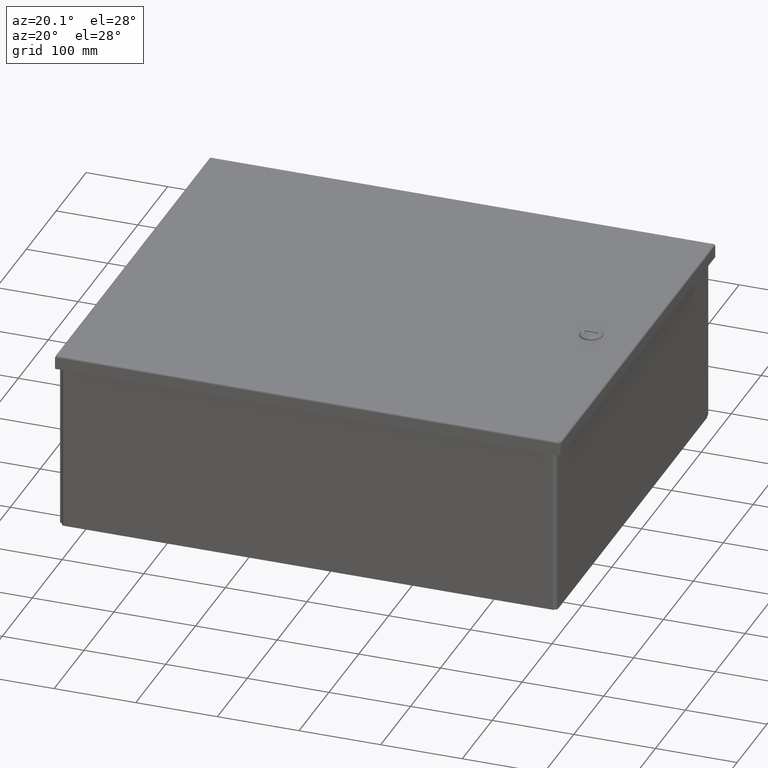
[diagram: clean part render]
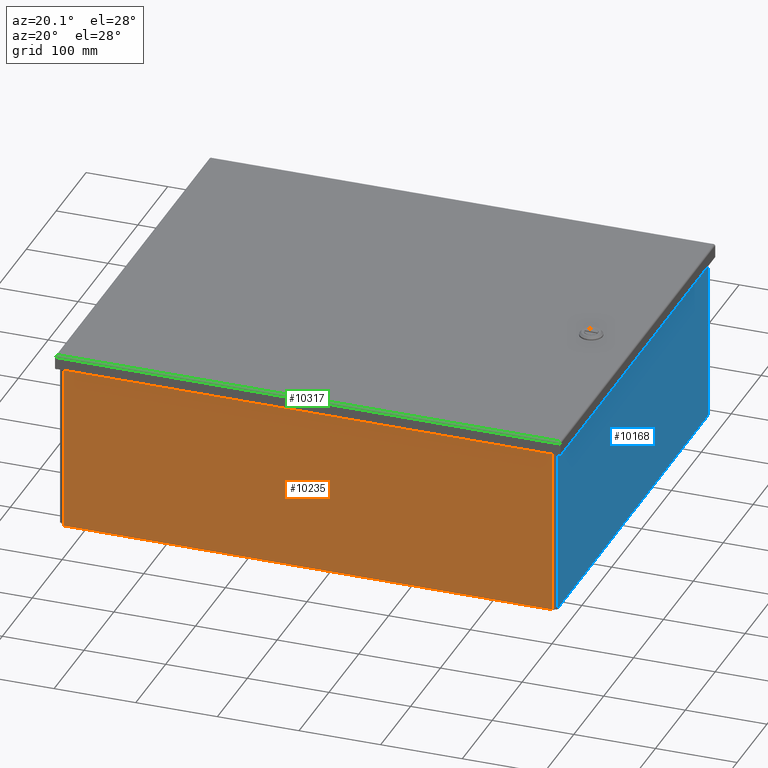
[diagram: same view with three faces highlighted in distinct colors, each labeled with its STEP entity id]
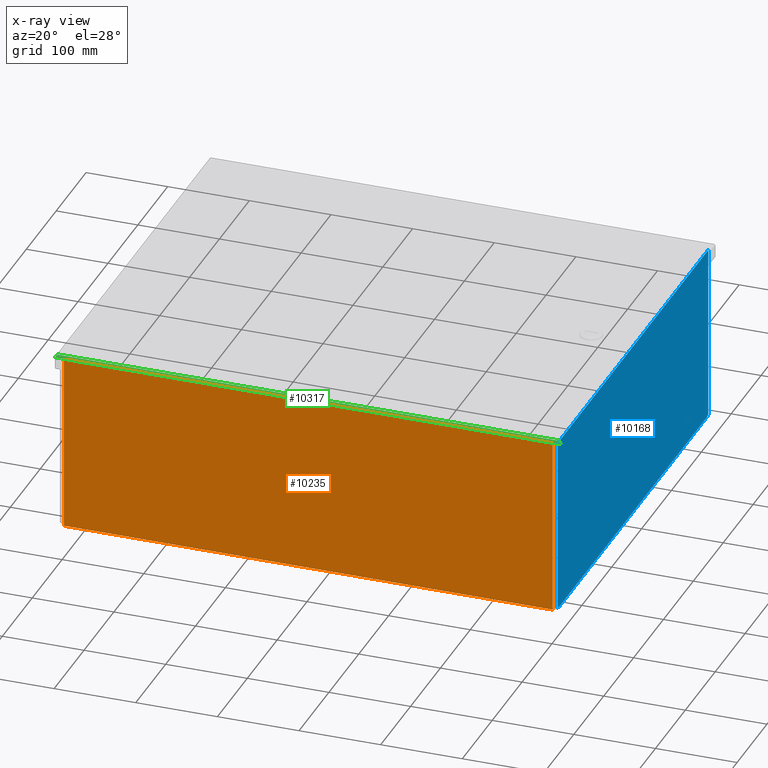
[diagram: x-ray of the same camera — body ghosted, the three highlighted faces saturated]
A machine part, auxiliary view with three faces highlighted in distinct colors.
The next image is the same camera in x-ray (body ghosted, the three faces saturated) — at least one of them is partly hidden behind the body in this view.
Their STEP definitions:

[orange] entity #10235 — the highlighted planar face has unit normal (-0, 1, -0).
#482=LINE('',#15215,#1411);
#487=LINE('',#15233,#1416);
#493=LINE('',#15245,#1422);
#494=LINE('',#15247,#1423);
#495=LINE('',#15249,#1424);
#496=LINE('',#15251,#1425);
#497=LINE('',#15253,#1426);
#498=LINE('',#15255,#1427);
#499=LINE('',#15256,#1428);
#500=LINE('',#15258,#1429);
#501=LINE('',#15259,#1430);
#502=LINE('',#15260,#1431);
#1411=VECTOR('',#12231,8.50825);
#1416=VECTOR('',#12248,0.0310499999999996);
#1422=VECTOR('',#12256,0.0310500000000003);
#1423=VECTOR('',#12259,0.170250000000002);
#1424=VECTOR('',#12260,0.00020000000000138);
#1425=VECTOR('',#12261,0.000199999999999981);
#1426=VECTOR('',#12262,23.2381);
#1427=VECTOR('',#12263,0.000199999999999981);
#1428=VECTOR('',#12264,0.000199999999999981);
#1429=VECTOR('',#12265,0.170250000000001);
#1430=VECTOR('',#12266,8.50825);
#1431=VECTOR('',#12267,23.579);
#2250=PLANE('',#10906);
#2726=FACE_OUTER_BOUND('',#3350,.T.);
#3350=EDGE_LOOP('',(#7064,#7065,#7066,#7067,#7068,#7069,#7070,#7071,#7072,
#7073,#7074,#7075));
#4460=VERTEX_POINT('',#15207);
#4462=VERTEX_POINT('',#15213);
#4464=VERTEX_POINT('',#15219);
#4468=VERTEX_POINT('',#15230);
#4469=VERTEX_POINT('',#15232);
#4472=VERTEX_POINT('',#15239);
#4474=VERTEX_POINT('',#15243);
#4475=VERTEX_POINT('',#15248);
#4476=VERTEX_POINT('',#15250);
#4477=VERTEX_POINT('',#15252);
#4478=VERTEX_POINT('',#15254);
#4479=VERTEX_POINT('',#15257);
#5435=EDGE_CURVE('',#4460,#4462,#482,.T.);
#5443=EDGE_CURVE('',#4469,#4468,#487,.T.);
#5449=EDGE_CURVE('',#4472,#4474,#493,.T.);
#5450=EDGE_CURVE('',#4462,#4469,#494,.T.);
#5451=EDGE_CURVE('',#4468,#4475,#495,.T.);
#5452=EDGE_CURVE('',#4475,#4476,#496,.T.);
#5453=EDGE_CURVE('',#4476,#4477,#497,.T.);
#5454=EDGE_CURVE('',#4477,#4478,#498,.T.);
#5455=EDGE_CURVE('',#4478,#4472,#499,.T.);
#5456=EDGE_CURVE('',#4474,#4479,#500,.T.);
#5457=EDGE_CURVE('',#4479,#4464,#501,.T.);
#5458=EDGE_CURVE('',#4464,#4460,#502,.T.);
#7064=ORIENTED_EDGE('',*,*,#5450,.T.);
#7065=ORIENTED_EDGE('',*,*,#5443,.T.);
#7066=ORIENTED_EDGE('',*,*,#5451,.T.);
#7067=ORIENTED_EDGE('',*,*,#5452,.T.);
#7068=ORIENTED_EDGE('',*,*,#5453,.T.);
#7069=ORIENTED_EDGE('',*,*,#5454,.T.);
#7070=ORIENTED_EDGE('',*,*,#5455,.T.);
#7071=ORIENTED_EDGE('',*,*,#5449,.T.);
#7072=ORIENTED_EDGE('',*,*,#5456,.T.);
#7073=ORIENTED_EDGE('',*,*,#5457,.T.);
#7074=ORIENTED_EDGE('',*,*,#5458,.T.);
#7075=ORIENTED_EDGE('',*,*,#5435,.T.);
#10235=ADVANCED_FACE('',(#2726),#2250,.F.);
#10906=AXIS2_PLACEMENT_3D('',#15246,#12257,#12258);
#12231=DIRECTION('',(1.60849400311198E-16,1.,0.));
#12248=DIRECTION('',(0.,1.,0.));
#12256=DIRECTION('',(0.,-1.,0.));
#12257=DIRECTION('center_axis',(0.,0.,1.));
#12258=DIRECTION('ref_axis',(1.,0.,0.));
#12259=DIRECTION('',(1.,0.,0.));
#12260=DIRECTION('',(1.,0.,0.));
#12261=DIRECTION('',(0.,1.,0.));
#12262=DIRECTION('',(1.,2.40760849252926E-16,0.));
#12263=DIRECTION('',(0.,-1.,0.));
#12264=DIRECTION('',(1.,0.,0.));
#12265=DIRECTION('',(1.,0.,0.));
#12266=DIRECTION('',(1.60849400311198E-16,-1.,0.));
#12267=DIRECTION('',(-1.,-1.18014358146819E-16,0.));
#15207=CARTESIAN_POINT('',(-11.7895,-4.301,-1.09273919746571E-17));
#15213=CARTESIAN_POINT('',(-11.7895,4.20725,0.));
#15215=CARTESIAN_POINT('',(-11.7895,-2.1505,0.));
#15219=CARTESIAN_POINT('',(11.7895,-4.301,-3.27821759239712E-17));
#15230=CARTESIAN_POINT('',(-11.61925,4.2383,-2.18547839493141E-17));
#15232=CARTESIAN_POINT('',(-11.61925,4.20725,0.));
#15233=CARTESIAN_POINT('',(-11.61925,2.103625,0.));
#15239=CARTESIAN_POINT('',(11.61925,4.2383,-2.18547839493141E-17));
#15243=CARTESIAN_POINT('',(11.61925,4.20725,0.));
#15245=CARTESIAN_POINT('',(11.61925,2.1505,0.));
#15246=CARTESIAN_POINT('Origin',(-1.3987061727561E-15,-6.99353086378051E-16,
0.));
#15247=CARTESIAN_POINT('',(-5.926,4.20725,0.));
#15248=CARTESIAN_POINT('',(-11.61905,4.2383,-2.18547839493141E-17));
#15249=CARTESIAN_POINT('',(-5.809625,4.2383,0.));
#15250=CARTESIAN_POINT('',(-11.61905,4.2385,-2.18547839493141E-17));
#15251=CARTESIAN_POINT('',(-11.61905,2.11915,0.));
#15252=CARTESIAN_POINT('',(11.61905,4.2385,-2.18547839493141E-17));
#15253=CARTESIAN_POINT('',(-5.809525,4.2385,0.));
#15254=CARTESIAN_POINT('',(11.61905,4.2383,-2.18547839493141E-17));
#15255=CARTESIAN_POINT('',(11.61905,2.1505,0.));
#15256=CARTESIAN_POINT('',(5.809525,4.2383,0.));
#15257=CARTESIAN_POINT('',(11.7895,4.20725,0.));
#15258=CARTESIAN_POINT('',(5.809625,4.20725,0.));
#15259=CARTESIAN_POINT('',(11.7895,2.1505,0.));
#15260=CARTESIAN_POINT('',(11.852,-4.301,0.));

[blue] entity #10168 — the highlighted planar face has unit normal (-1, -0, 0).
#329=LINE('',#14841,#1258);
#331=LINE('',#14846,#1260);
#357=LINE('',#14901,#1286);
#362=LINE('',#14910,#1291);
#380=LINE('',#14944,#1309);
#381=LINE('',#14946,#1310);
#382=LINE('',#14947,#1311);
#383=LINE('',#14948,#1312);
#1258=VECTOR('',#11848,0.0283891648420548);
#1260=VECTOR('',#11852,0.136500000000324);
#1286=VECTOR('',#11894,0.0283891648420618);
#1291=VECTOR('',#11901,0.136499999999998);
#1309=VECTOR('',#11939,8.44861083515795);
#1310=VECTOR('',#11940,19.852);
#1311=VECTOR('',#11941,8.44861083515794);
#1312=VECTOR('',#11942,19.579);
#2200=PLANE('',#10803);
#2659=FACE_OUTER_BOUND('',#3270,.T.);
#3270=EDGE_LOOP('',(#6753,#6754,#6755,#6756,#6757,#6758,#6759,#6760));
#4354=VERTEX_POINT('',#14835);
#4356=VERTEX_POINT('',#14839);
#4357=VERTEX_POINT('',#14843);
#4378=VERTEX_POINT('',#14898);
#4379=VERTEX_POINT('',#14900);
#4382=VERTEX_POINT('',#14907);
#4388=VERTEX_POINT('',#14943);
#4389=VERTEX_POINT('',#14945);
#5250=EDGE_CURVE('',#4354,#4356,#329,.T.);
#5252=EDGE_CURVE('',#4356,#4357,#331,.T.);
#5278=EDGE_CURVE('',#4379,#4378,#357,.T.);
#5283=EDGE_CURVE('',#4382,#4379,#362,.T.);
#5301=EDGE_CURVE('',#4388,#4357,#380,.T.);
#5302=EDGE_CURVE('',#4388,#4389,#381,.T.);
#5303=EDGE_CURVE('',#4382,#4389,#382,.T.);
#5304=EDGE_CURVE('',#4378,#4354,#383,.T.);
#6753=ORIENTED_EDGE('',*,*,#5250,.T.);
#6754=ORIENTED_EDGE('',*,*,#5252,.T.);
#6755=ORIENTED_EDGE('',*,*,#5301,.F.);
#6756=ORIENTED_EDGE('',*,*,#5302,.T.);
#6757=ORIENTED_EDGE('',*,*,#5303,.F.);
#6758=ORIENTED_EDGE('',*,*,#5283,.T.);
#6759=ORIENTED_EDGE('',*,*,#5278,.T.);
#6760=ORIENTED_EDGE('',*,*,#5304,.T.);
#10168=ADVANCED_FACE('',(#2659),#2200,.F.);
#10803=AXIS2_PLACEMENT_3D('',#14942,#11937,#11938);
#11848=DIRECTION('',(2.66770565259942E-14,-1.78035139770598E-48,1.));
#11852=DIRECTION('',(-1.3404674408553E-28,1.,-5.02479514390632E-15));
#11894=DIRECTION('',(-2.66770565259942E-14,4.47585975281953E-15,-1.));
#11901=DIRECTION('',(-3.06651088104781E-62,1.,1.78035139770598E-48));
#11937=DIRECTION('center_axis',(-1.,-7.81596436832132E-62,2.66770565259942E-14));
#11938=DIRECTION('ref_axis',(0.,-1.,0.));
#11939=DIRECTION('',(2.34876955162085E-14,4.34384728791442E-48,-1.));
#11940=DIRECTION('',(7.14759787267924E-34,-1.,9.49227519370611E-48));
#11941=DIRECTION('',(-2.34876955162085E-14,-4.34384728791442E-48,1.));
#11942=DIRECTION('',(-7.14759787267924E-34,1.,-1.24442129626645E-47));
#14835=CARTESIAN_POINT('',(12.,9.7895,0.136500000000002));
#14839=CARTESIAN_POINT('',(12.,9.78949999999968,0.164889164842057));
#14841=CARTESIAN_POINT('',(11.9999999999998,9.78949999999968,-5.8464162527369));
#14843=CARTESIAN_POINT('',(12.,9.926,0.164889164842057));
#14846=CARTESIAN_POINT('',(12.,5.17311083515796,0.164889164842081));
#14898=CARTESIAN_POINT('',(12.,-9.7895,0.136500000000002));
#14900=CARTESIAN_POINT('',(12.,-9.7895,0.164889164842064));
#14901=CARTESIAN_POINT('',(11.9999999999998,-9.78949999999997,-6.00266625273692));
#14907=CARTESIAN_POINT('',(12.,-9.926,0.164889164842064));
#14910=CARTESIAN_POINT('',(12.,-4.89475,0.164889164842064));
#14942=CARTESIAN_POINT('Origin',(11.9999999999997,-2.79741234551221E-15,
-11.8577216703159));
#14943=CARTESIAN_POINT('',(11.9999999999998,9.926,8.61350000000001));
#14944=CARTESIAN_POINT('',(12.,9.926,0.136500000000005));
#14945=CARTESIAN_POINT('',(11.9999999999998,-9.926,8.61350000000001));
#14946=CARTESIAN_POINT('',(11.9999999999998,4.963,8.61350000000001));
#14947=CARTESIAN_POINT('',(12.,-9.926,0.136500000000005));
#14948=CARTESIAN_POINT('',(12.,-2.13539293151422E-47,0.136500000000006));

[green] entity #10317 — the highlighted cylindrical surface (edge-blend (fillet) strip) has radius 2.6733 mm, axis along (1, -0, 0).
#208=B_SPLINE_CURVE_WITH_KNOTS('',3,(#15508,#15509,#15510,#15511,#15512,
#15513,#15514),.UNSPECIFIED.,.F.,.F.,(4,3,4),(-0.999999999999967,-0.428571428571404,
0.),.UNSPECIFIED.);
#215=B_SPLINE_CURVE_WITH_KNOTS('',3,(#15655,#15656,#15657,#15658,#15659,
#15660,#15661),.UNSPECIFIED.,.F.,.F.,(4,3,4),(-0.999999999999967,-0.571428571428559,
0.),.UNSPECIFIED.);
#639=LINE('',#15962,#1568);
#640=LINE('',#15963,#1569);
#1568=VECTOR('',#12572,24.375);
#1569=VECTOR('',#12573,24.1645);
#2808=FACE_OUTER_BOUND('',#3432,.T.);
#3432=EDGE_LOOP('',(#7426,#7427,#7428,#7429));
#4529=VERTEX_POINT('',#15483);
#4530=VERTEX_POINT('',#15506);
#4546=VERTEX_POINT('',#15624);
#4547=VERTEX_POINT('',#15632);
#5549=EDGE_CURVE('',#4529,#4530,#208,.T.);
#5575=EDGE_CURVE('',#4547,#4546,#215,.T.);
#5632=EDGE_CURVE('',#4529,#4547,#639,.T.);
#5633=EDGE_CURVE('',#4546,#4530,#640,.T.);
#7426=ORIENTED_EDGE('',*,*,#5632,.F.);
#7427=ORIENTED_EDGE('',*,*,#5549,.T.);
#7428=ORIENTED_EDGE('',*,*,#5633,.F.);
#7429=ORIENTED_EDGE('',*,*,#5575,.F.);
#9518=CYLINDRICAL_SURFACE('',#10990,0.10525);
#10317=ADVANCED_FACE('',(#2808),#9518,.T.);
#10990=AXIS2_PLACEMENT_3D('',#15961,#12570,#12571);
#12570=DIRECTION('center_axis',(1.,2.2953126937536E-16,0.));
#12571=DIRECTION('ref_axis',(0.,0.,1.));
#12572=DIRECTION('',(-1.,-2.29092148586413E-16,-2.36699404374238E-33));
#12573=DIRECTION('',(1.,2.31530745143678E-16,0.));
#15483=CARTESIAN_POINT('',(12.1875,-10.203125,-0.0312499999999995));
#15506=CARTESIAN_POINT('',(12.08225,-10.097875,0.074));
#15508=CARTESIAN_POINT('Ctrl Pts',(12.1875,-10.203125,-0.031249999999994));
#15509=CARTESIAN_POINT('Ctrl Pts',(12.1674523809525,-10.203125,0.00024072636100158));
#15510=CARTESIAN_POINT('Ctrl Pts',(12.1474047619048,-10.1880162141984,0.0313895995457693));
#15511=CARTESIAN_POINT('Ctrl Pts',(12.1273571428572,-10.1635192798502,0.051024421299455));
#15512=CARTESIAN_POINT('Ctrl Pts',(12.1123214285715,-10.1451465790892,0.0657505376147187));
#15513=CARTESIAN_POINT('Ctrl Pts',(12.0972857142857,-10.1214930447707,0.0739999999999994));
#15514=CARTESIAN_POINT('Ctrl Pts',(12.08225,-10.097875,0.074));
#15624=CARTESIAN_POINT('',(-12.08225,-10.097875,0.074));
#15632=CARTESIAN_POINT('',(-12.1875,-10.203125,-0.0312500000000042));
#15655=CARTESIAN_POINT('Ctrl Pts',(-12.1875,-10.203125,-0.0312499999999962));
#15656=CARTESIAN_POINT('Ctrl Pts',(-12.1724642857145,-10.203125,-0.00763195522925002));
#15657=CARTESIAN_POINT('Ctrl Pts',(-12.1574285714287,-10.1948755376147,
0.0160215790892021));
#15658=CARTESIAN_POINT('Ctrl Pts',(-12.1423928571431,-10.1801494212994,
0.0343942798502717));
#15659=CARTESIAN_POINT('Ctrl Pts',(-12.1223452380956,-10.1605145995457,
0.0588912141983651));
#15660=CARTESIAN_POINT('Ctrl Pts',(-12.1022976190482,-10.1293657263609,
0.0739999999999998));
#15661=CARTESIAN_POINT('Ctrl Pts',(-12.08225,-10.097875,0.074));
#15961=CARTESIAN_POINT('Origin',(1.3987061727561E-15,-10.097875,-0.0312499999999995));
#15962=CARTESIAN_POINT('',(1.32948039308068E-15,-10.203125,-0.0312499999999995));
#15963=CARTESIAN_POINT('',(-6.041125,-10.097875,0.074));